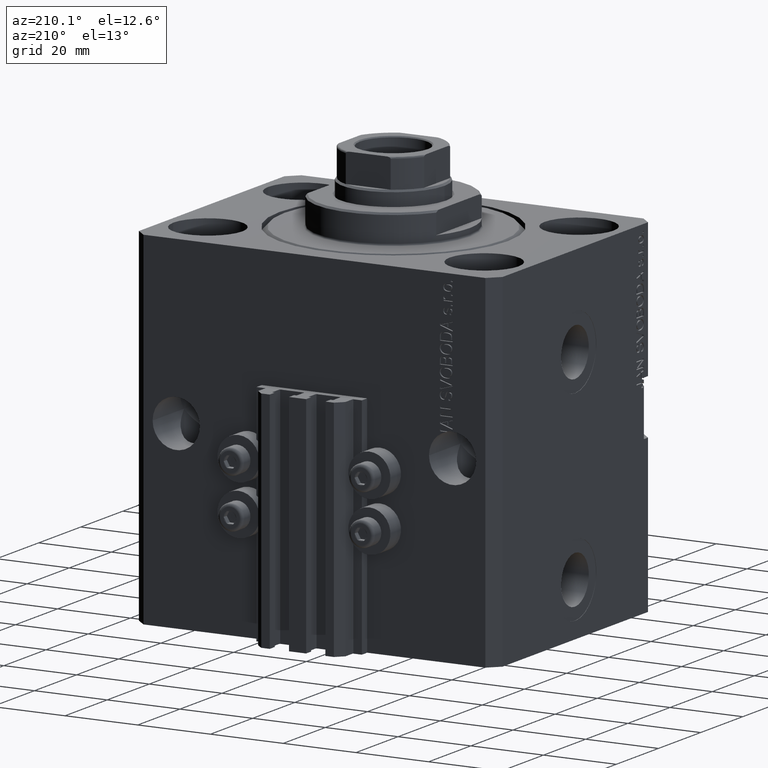
[diagram: clean part render]
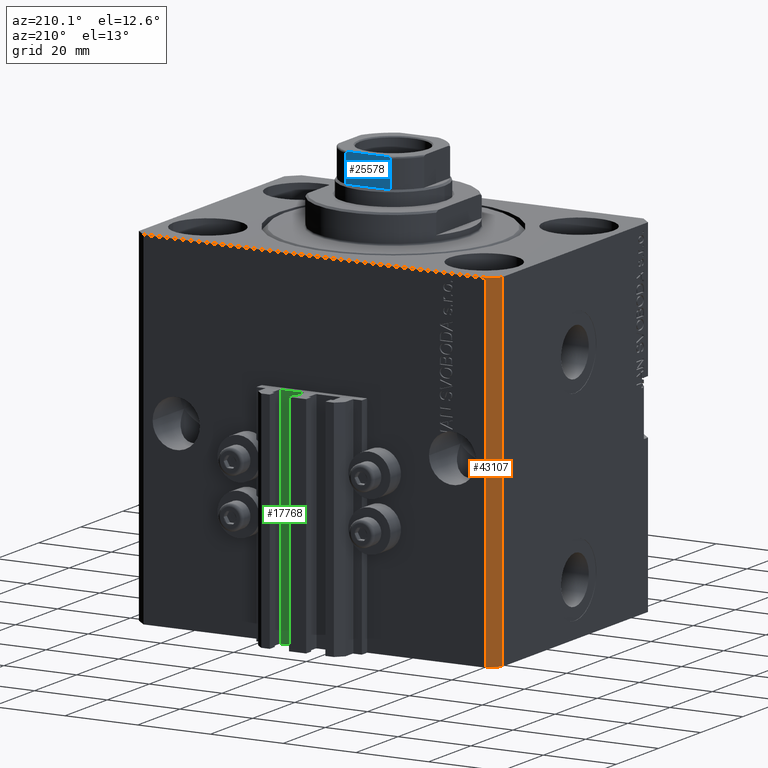
[diagram: same view with three faces highlighted in distinct colors, each labeled with its STEP entity id]
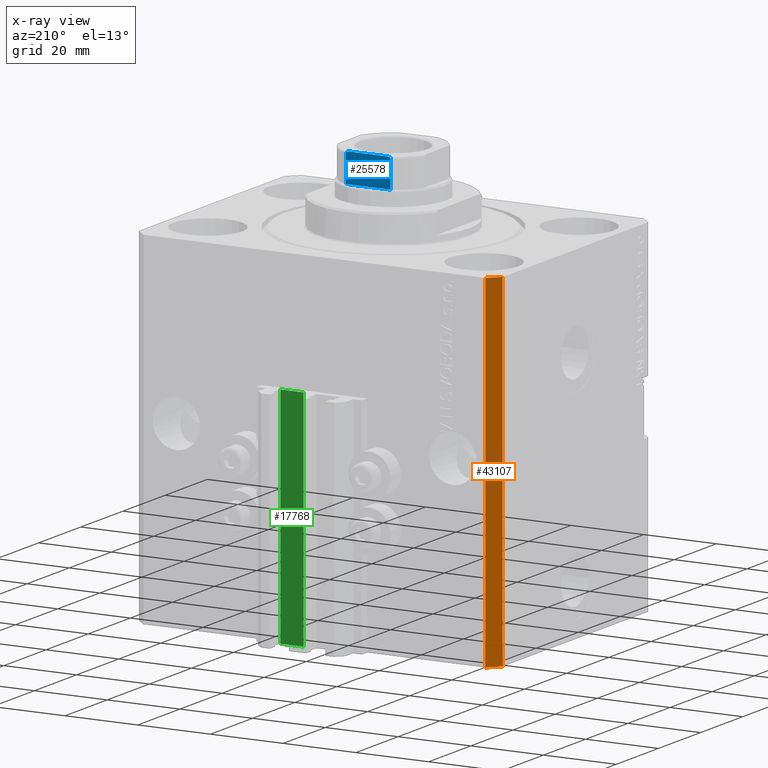
[diagram: x-ray of the same camera — body ghosted, the three highlighted faces saturated]
A machine part, auxiliary view with three faces highlighted in distinct colors.
The next image is the same camera in x-ray (body ghosted, the three faces saturated) — at least one of them is partly hidden behind the body in this view.
Their STEP definitions:

[orange] entity #43107 — the highlighted planar face has unit normal (-0.7071, 0.7071, 0).
#1002 = DIRECTION ( 'NONE',  ( -0.7071067811865466846, 0.7071067811865484609, 0.000000000000000000 ) ) ;
#3106 = DIRECTION ( 'NONE',  ( 0.000000000000000000, 0.000000000000000000, 1.000000000000000000 ) ) ;
#4389 = CARTESIAN_POINT ( 'NONE',  ( -50.00000000000001421, 34.50000000000000000, -95.00000000000000000 ) ) ;
#4442 = CARTESIAN_POINT ( 'NONE',  ( -50.00000000000001421, 34.50000000000000000, -95.00000000000000000 ) ) ;
#8440 = DIRECTION ( 'NONE',  ( -0.7071067811865483499, -0.7071067811865466846, 0.000000000000000000 ) ) ;
#8730 = CARTESIAN_POINT ( 'NONE',  ( -47.00000000000001421, 37.50000000000000000, -95.00000000000000000 ) ) ;
#9326 = VERTEX_POINT ( 'NONE', #21875 ) ;
#11805 = VECTOR ( 'NONE', #27310, 1000.000000000000000 ) ;
#11853 = VECTOR ( 'NONE', #3106, 1000.000000000000000 ) ;
#13727 = CARTESIAN_POINT ( 'NONE',  ( -47.00000000000001421, 37.50000000000000000, -95.00000000000000000 ) ) ;
#14276 = ORIENTED_EDGE ( 'NONE', *, *, #39117, .T. ) ;
#15429 = LINE ( 'NONE', #26544, #21848 ) ;
#15459 = CARTESIAN_POINT ( 'NONE',  ( -47.00000000000001421, 37.50000000000000000, -95.00000000000000000 ) ) ;
#18230 = ORIENTED_EDGE ( 'NONE', *, *, #27187, .F. ) ;
#19088 = DIRECTION ( 'NONE',  ( 0.000000000000000000, 0.000000000000000000, 1.000000000000000000 ) ) ;
#19187 = VERTEX_POINT ( 'NONE', #45711 ) ;
#21848 = VECTOR ( 'NONE', #8440, 1000.000000000000000 ) ;
#21875 = CARTESIAN_POINT ( 'NONE',  ( -47.00000000000001421, 37.50000000000000000, 0.000000000000000000 ) ) ;
#23184 = FACE_OUTER_BOUND ( 'NONE', #23305, .T. ) ;
#23305 = EDGE_LOOP ( 'NONE', ( #18230, #28874, #31015, #14276 ) ) ;
#26324 = DIRECTION ( 'NONE',  ( -0.7071067811865483499, -0.7071067811865465735, 0.000000000000000000 ) ) ;
#26544 = CARTESIAN_POINT ( 'NONE',  ( -47.00000000000001421, 37.50000000000000000, 0.000000000000000000 ) ) ;
#27187 = EDGE_CURVE ( 'NONE', #9326, #19187, #15429, .T. ) ;
#27310 = DIRECTION ( 'NONE',  ( -0.7071067811865483499, -0.7071067811865466846, 0.000000000000000000 ) ) ;
#27972 = VECTOR ( 'NONE', #19088, 1000.000000000000000 ) ;
#28874 = ORIENTED_EDGE ( 'NONE', *, *, #29424, .F. ) ;
#29424 = EDGE_CURVE ( 'NONE', #45030, #9326, #47194, .T. ) ;
#29477 = LINE ( 'NONE', #4389, #27972 ) ;
#31015 = ORIENTED_EDGE ( 'NONE', *, *, #39803, .T. ) ;
#33565 = PLANE ( 'NONE',  #45022 ) ;
#39117 = EDGE_CURVE ( 'NONE', #46563, #19187, #29477, .T. ) ;
#39803 = EDGE_CURVE ( 'NONE', #45030, #46563, #41742, .T. ) ;
#41742 = LINE ( 'NONE', #8730, #11805 ) ;
#43107 = ADVANCED_FACE ( 'NONE', ( #23184 ), #33565, .T. ) ;
#45022 = AXIS2_PLACEMENT_3D ( 'NONE', #15459, #1002, #26324 ) ;
#45030 = VERTEX_POINT ( 'NONE', #47075 ) ;
#45711 = CARTESIAN_POINT ( 'NONE',  ( -50.00000000000001421, 34.50000000000000000, 0.000000000000000000 ) ) ;
#46563 = VERTEX_POINT ( 'NONE', #4442 ) ;
#47075 = CARTESIAN_POINT ( 'NONE',  ( -47.00000000000001421, 37.50000000000000000, -95.00000000000000000 ) ) ;
#47194 = LINE ( 'NONE', #13727, #11853 ) ;

[blue] entity #25578 — the highlighted planar face has unit normal (0, -1, 0).
#485 = LINE ( 'NONE', #21490, #20827 ) ;
#652 = DIRECTION ( 'NONE',  ( 1.000000000000000000, 7.228014483236695816E-17, 0.000000000000000000 ) ) ;
#1679 = CARTESIAN_POINT ( 'NONE',  ( -6.091003570118825650, 11.99999999999999822, 102.8080862465980942 ) ) ;
#4521 = CARTESIAN_POINT ( 'NONE',  ( 5.000000000000002665, 12.00000000000000000, 103.0999999999999943 ) ) ;
#5428 = CARTESIAN_POINT ( 'NONE',  ( 6.184658438426492211, 12.00000000000000178, 95.10000000000006537 ) ) ;
#5959 = ORIENTED_EDGE ( 'NONE', *, *, #15939, .F. ) ;
#7413 = ORIENTED_EDGE ( 'NONE', *, *, #19759, .F. ) ;
#7817 = EDGE_CURVE ( 'NONE', #15846, #27651, #44613, .T. ) ;
#8364 = CARTESIAN_POINT ( 'NONE',  ( 6.184658438426490434, 11.99999999999999822, 102.5999999999999943 ) ) ;
#9638 = CARTESIAN_POINT ( 'NONE',  ( -5.458892612163326774, 11.99999999999999822, 103.0796099716497594 ) ) ;
#10177 = VERTEX_POINT ( 'NONE', #18194 ) ;
#11038 = VERTEX_POINT ( 'NONE', #15808 ) ;
#11159 = CARTESIAN_POINT ( 'NONE',  ( -6.184658438426490434, 12.00000000000000000, 102.5999999999999943 ) ) ;
#11276 = CARTESIAN_POINT ( 'NONE',  ( 6.160856115322540738, 12.00000000000000355, 102.7149782197479198 ) ) ;
#11500 = PLANE ( 'NONE',  #24851 ) ;
#11737 = CARTESIAN_POINT ( 'NONE',  ( 5.230809753656818550, 11.99999999999999289, 103.0999999999999659 ) ) ;
#13006 = CARTESIAN_POINT ( 'NONE',  ( -6.161088279078732910, 12.00000000000000000, 102.7146234191510104 ) ) ;
#13382 = LINE ( 'NONE', #21341, #28512 ) ;
#14282 = DIRECTION ( 'NONE',  ( -1.000000000000000000, -7.228014483236695816E-17, -0.000000000000000000 ) ) ;
#14479 = CARTESIAN_POINT ( 'NONE',  ( -6.184658438426490434, 12.00000000000000000, -0.001000000000001000089 ) ) ;
#15127 = FACE_OUTER_BOUND ( 'NONE', #21487, .T. ) ;
#15808 = CARTESIAN_POINT ( 'NONE',  ( -5.000000000000001776, 11.99999999999999822, 103.0999999999999943 ) ) ;
#15846 = VERTEX_POINT ( 'NONE', #5428 ) ;
#15939 = EDGE_CURVE ( 'NONE', #15846, #10177, #13382, .T. ) ;
#17709 = DIRECTION ( 'NONE',  ( -0.000000000000000000, -0.000000000000000000, 1.000000000000000000 ) ) ;
#18123 = VECTOR ( 'NONE', #36155, 1000.000000000000000 ) ;
#18194 = CARTESIAN_POINT ( 'NONE',  ( 6.184658438426490434, 11.99999999999999822, 102.5999999999999943 ) ) ;
#19759 = EDGE_CURVE ( 'NONE', #44016, #11038, #485, .T. ) ;
#20242 = CARTESIAN_POINT ( 'NONE',  ( -5.230795946637842420, 11.99999999999999645, 103.0999999999999943 ) ) ;
#20493 = CARTESIAN_POINT ( 'NONE',  ( -5.792513940493508429, 11.99999999999999822, 102.9846382036009373 ) ) ;
#20827 = VECTOR ( 'NONE', #43665, 1000.000000000000000 ) ;
#21341 = CARTESIAN_POINT ( 'NONE',  ( 6.184658438426490434, 11.99999999999999822, -0.001000000000001000089 ) ) ;
#21487 = EDGE_LOOP ( 'NONE', ( #7413, #23051, #5959, #22886, #24624, #27679 ) ) ;
#21490 = CARTESIAN_POINT ( 'NONE',  ( -11.99999999999999822, 11.99999999999999822, 103.0999999999999943 ) ) ;
#22886 = ORIENTED_EDGE ( 'NONE', *, *, #7817, .T. ) ;
#23051 = ORIENTED_EDGE ( 'NONE', *, *, #32062, .T. ) ;
#23632 = CARTESIAN_POINT ( 'NONE',  ( -6.184658438426491323, 12.00000000000000000, 102.6589344020393924 ) ) ;
#24624 = ORIENTED_EDGE ( 'NONE', *, *, #47128, .T. ) ;
#24851 = AXIS2_PLACEMENT_3D ( 'NONE', #26213, #37280, #652 ) ;
#25329 = LINE ( 'NONE', #14479, #18123 ) ;
#25578 = ADVANCED_FACE ( 'NONE', ( #15127 ), #11500, .F. ) ;
#25624 = B_SPLINE_CURVE_WITH_KNOTS ( 'NONE', 3,
 ( #4521, #11737, #33456, #34162, #44314, #26709, #25756, #11276, #41388, #8364 ),
 .UNSPECIFIED., .F., .F.,
 ( 4, 2, 2, 2, 4 ),
 ( 1.734723475976807094E-18, 0.0006877128613558521411, 0.001031569292033771706, 0.001203497507372732573, 0.001375425722711693440 ),
 .UNSPECIFIED. ) ;
#25756 = CARTESIAN_POINT ( 'NONE',  ( 6.091027642353962435, 12.00000000000000355, 102.8080088155617489 ) ) ;
#26128 = VERTEX_POINT ( 'NONE', #11159 ) ;
#26213 = CARTESIAN_POINT ( 'NONE',  ( -11.99999999999999822, 11.99999999999999822, 103.0999999999999943 ) ) ;
#26709 = CARTESIAN_POINT ( 'NONE',  ( 6.045866546018598520, 12.00000000000000178, 102.8461068616299485 ) ) ;
#27651 = VERTEX_POINT ( 'NONE', #32900 ) ;
#27679 = ORIENTED_EDGE ( 'NONE', *, *, #30059, .T. ) ;
#28512 = VECTOR ( 'NONE', #17709, 1000.000000000000000 ) ;
#30059 = EDGE_CURVE ( 'NONE', #26128, #11038, #38367, .T. ) ;
#31337 = CARTESIAN_POINT ( 'NONE',  ( -6.046414714222231979, 11.99999999999999822, 102.8457872300293019 ) ) ;
#32062 = EDGE_CURVE ( 'NONE', #44016, #10177, #25624, .T. ) ;
#32900 = CARTESIAN_POINT ( 'NONE',  ( -6.184658438426488658, 12.00000000000000000, 95.10000000000006537 ) ) ;
#33456 = CARTESIAN_POINT ( 'NONE',  ( 5.459934723612541951, 12.00000000000000000, 103.0794964115812320 ) ) ;
#34162 = CARTESIAN_POINT ( 'NONE',  ( 5.793822051191360956, 11.99999999999999822, 102.9841735219943217 ) ) ;
#34688 = CARTESIAN_POINT ( 'NONE',  ( -6.184658438426490434, 12.00000000000000000, 102.5999999999999943 ) ) ;
#36155 = DIRECTION ( 'NONE',  ( -0.000000000000000000, -0.000000000000000000, 1.000000000000000000 ) ) ;
#37280 = DIRECTION ( 'NONE',  ( 7.228014483236695816E-17, -1.000000000000000000, 0.000000000000000000 ) ) ;
#38309 = CARTESIAN_POINT ( 'NONE',  ( -5.000000000000001776, 11.99999999999999822, 103.0999999999999943 ) ) ;
#38367 = B_SPLINE_CURVE_WITH_KNOTS ( 'NONE', 3,
 ( #34688, #23632, #13006, #1679, #31337, #45539, #20493, #9638, #20242, #38309 ),
 .UNSPECIFIED., .F., .F.,
 ( 4, 2, 2, 2, 4 ),
 ( 0.000000000000000000, 0.0001740189231935435705, 0.0003480378463870871411, 0.0006960756927741721138, 0.001392151385548330567 ),
 .UNSPECIFIED. ) ;
#39613 = VECTOR ( 'NONE', #14282, 1000.000000000000000 ) ;
#40616 = CARTESIAN_POINT ( 'NONE',  ( 5.000000000000002665, 12.00000000000000000, 103.0999999999999943 ) ) ;
#40752 = CARTESIAN_POINT ( 'NONE',  ( -11.99999999999999822, 11.99999999999999822, 95.09999999999999432 ) ) ;
#41388 = CARTESIAN_POINT ( 'NONE',  ( 6.184658438426495763, 12.00000000000000355, 102.6589821493407584 ) ) ;
#43665 = DIRECTION ( 'NONE',  ( -1.000000000000000000, -7.228014483236695816E-17, -0.000000000000000000 ) ) ;
#44016 = VERTEX_POINT ( 'NONE', #40616 ) ;
#44314 = CARTESIAN_POINT ( 'NONE',  ( 5.903192932991098374, 12.00000000000000000, 102.9415152347680191 ) ) ;
#44613 = LINE ( 'NONE', #40752, #39613 ) ;
#45539 = CARTESIAN_POINT ( 'NONE',  ( -5.900889097622411761, 12.00000000000000178, 102.9429613869932894 ) ) ;
#47128 = EDGE_CURVE ( 'NONE', #27651, #26128, #25329, .T. ) ;

[green] entity #17768 — the highlighted planar face has unit normal (-0, 1, 0).
#1253 = CARTESIAN_POINT ( 'NONE',  ( 8.199999999999999289, 39.50000000000000711, -33.00000000000000000 ) ) ;
#1280 = CARTESIAN_POINT ( 'NONE',  ( 1.800000000000000933, 39.50000000000000000, -95.00000000000000000 ) ) ;
#1494 = CARTESIAN_POINT ( 'NONE',  ( 8.199999999999999289, 39.50000000000000711, -95.00000000000000000 ) ) ;
#1847 = ORIENTED_EDGE ( 'NONE', *, *, #8998, .T. ) ;
#3401 = VERTEX_POINT ( 'NONE', #12277 ) ;
#4867 = LINE ( 'NONE', #1253, #45774 ) ;
#6880 = PLANE ( 'NONE',  #13143 ) ;
#7813 = CARTESIAN_POINT ( 'NONE',  ( 8.199999999999999289, 39.50000000000000711, -95.00000000000000000 ) ) ;
#8998 = EDGE_CURVE ( 'NONE', #30804, #3401, #21239, .T. ) ;
#9196 = DIRECTION ( 'NONE',  ( 0.000000000000000000, 0.000000000000000000, 1.000000000000000000 ) ) ;
#12277 = CARTESIAN_POINT ( 'NONE',  ( 1.800000000000000933, 39.50000000000000000, -33.00000000000000000 ) ) ;
#13143 = AXIS2_PLACEMENT_3D ( 'NONE', #32441, #24976, #13163 ) ;
#13163 = DIRECTION ( 'NONE',  ( -1.000000000000000000, -1.084202172485504828E-15, 0.000000000000000000 ) ) ;
#14688 = CARTESIAN_POINT ( 'NONE',  ( 8.199999999999999289, 39.50000000000000711, -33.00000000000000000 ) ) ;
#16562 = VECTOR ( 'NONE', #28774, 1000.000000000000000 ) ;
#16647 = DIRECTION ( 'NONE',  ( 0.000000000000000000, 0.000000000000000000, 1.000000000000000000 ) ) ;
#16899 = DIRECTION ( 'NONE',  ( -1.000000000000000000, -1.084202172485504828E-15, 0.000000000000000000 ) ) ;
#17768 = ADVANCED_FACE ( 'NONE', ( #46173 ), #6880, .T. ) ;
#17855 = VERTEX_POINT ( 'NONE', #7813 ) ;
#18896 = ORIENTED_EDGE ( 'NONE', *, *, #43174, .F. ) ;
#21134 = VECTOR ( 'NONE', #9196, 1000.000000000000000 ) ;
#21239 = LINE ( 'NONE', #43392, #33042 ) ;
#21304 = LINE ( 'NONE', #44170, #16562 ) ;
#24976 = DIRECTION ( 'NONE',  ( -1.084202172485504828E-15, 1.000000000000000000, 0.000000000000000000 ) ) ;
#27303 = LINE ( 'NONE', #1494, #21134 ) ;
#28774 = DIRECTION ( 'NONE',  ( -1.000000000000000000, -1.084202172485504828E-15, 0.000000000000000000 ) ) ;
#28991 = EDGE_CURVE ( 'NONE', #17855, #34251, #27303, .T. ) ;
#30804 = VERTEX_POINT ( 'NONE', #1280 ) ;
#31583 = EDGE_LOOP ( 'NONE', ( #18896, #38089, #43552, #1847 ) ) ;
#32441 = CARTESIAN_POINT ( 'NONE',  ( 8.199999999999999289, 39.50000000000000711, -95.00000000000000000 ) ) ;
#33042 = VECTOR ( 'NONE', #16647, 1000.000000000000000 ) ;
#34251 = VERTEX_POINT ( 'NONE', #14688 ) ;
#38089 = ORIENTED_EDGE ( 'NONE', *, *, #28991, .F. ) ;
#43174 = EDGE_CURVE ( 'NONE', #34251, #3401, #4867, .T. ) ;
#43392 = CARTESIAN_POINT ( 'NONE',  ( 1.800000000000000933, 39.50000000000000000, -95.00000000000000000 ) ) ;
#43552 = ORIENTED_EDGE ( 'NONE', *, *, #46851, .T. ) ;
#44170 = CARTESIAN_POINT ( 'NONE',  ( 8.199999999999999289, 39.50000000000000711, -95.00000000000000000 ) ) ;
#45774 = VECTOR ( 'NONE', #16899, 1000.000000000000000 ) ;
#46173 = FACE_OUTER_BOUND ( 'NONE', #31583, .T. ) ;
#46851 = EDGE_CURVE ( 'NONE', #17855, #30804, #21304, .T. ) ;